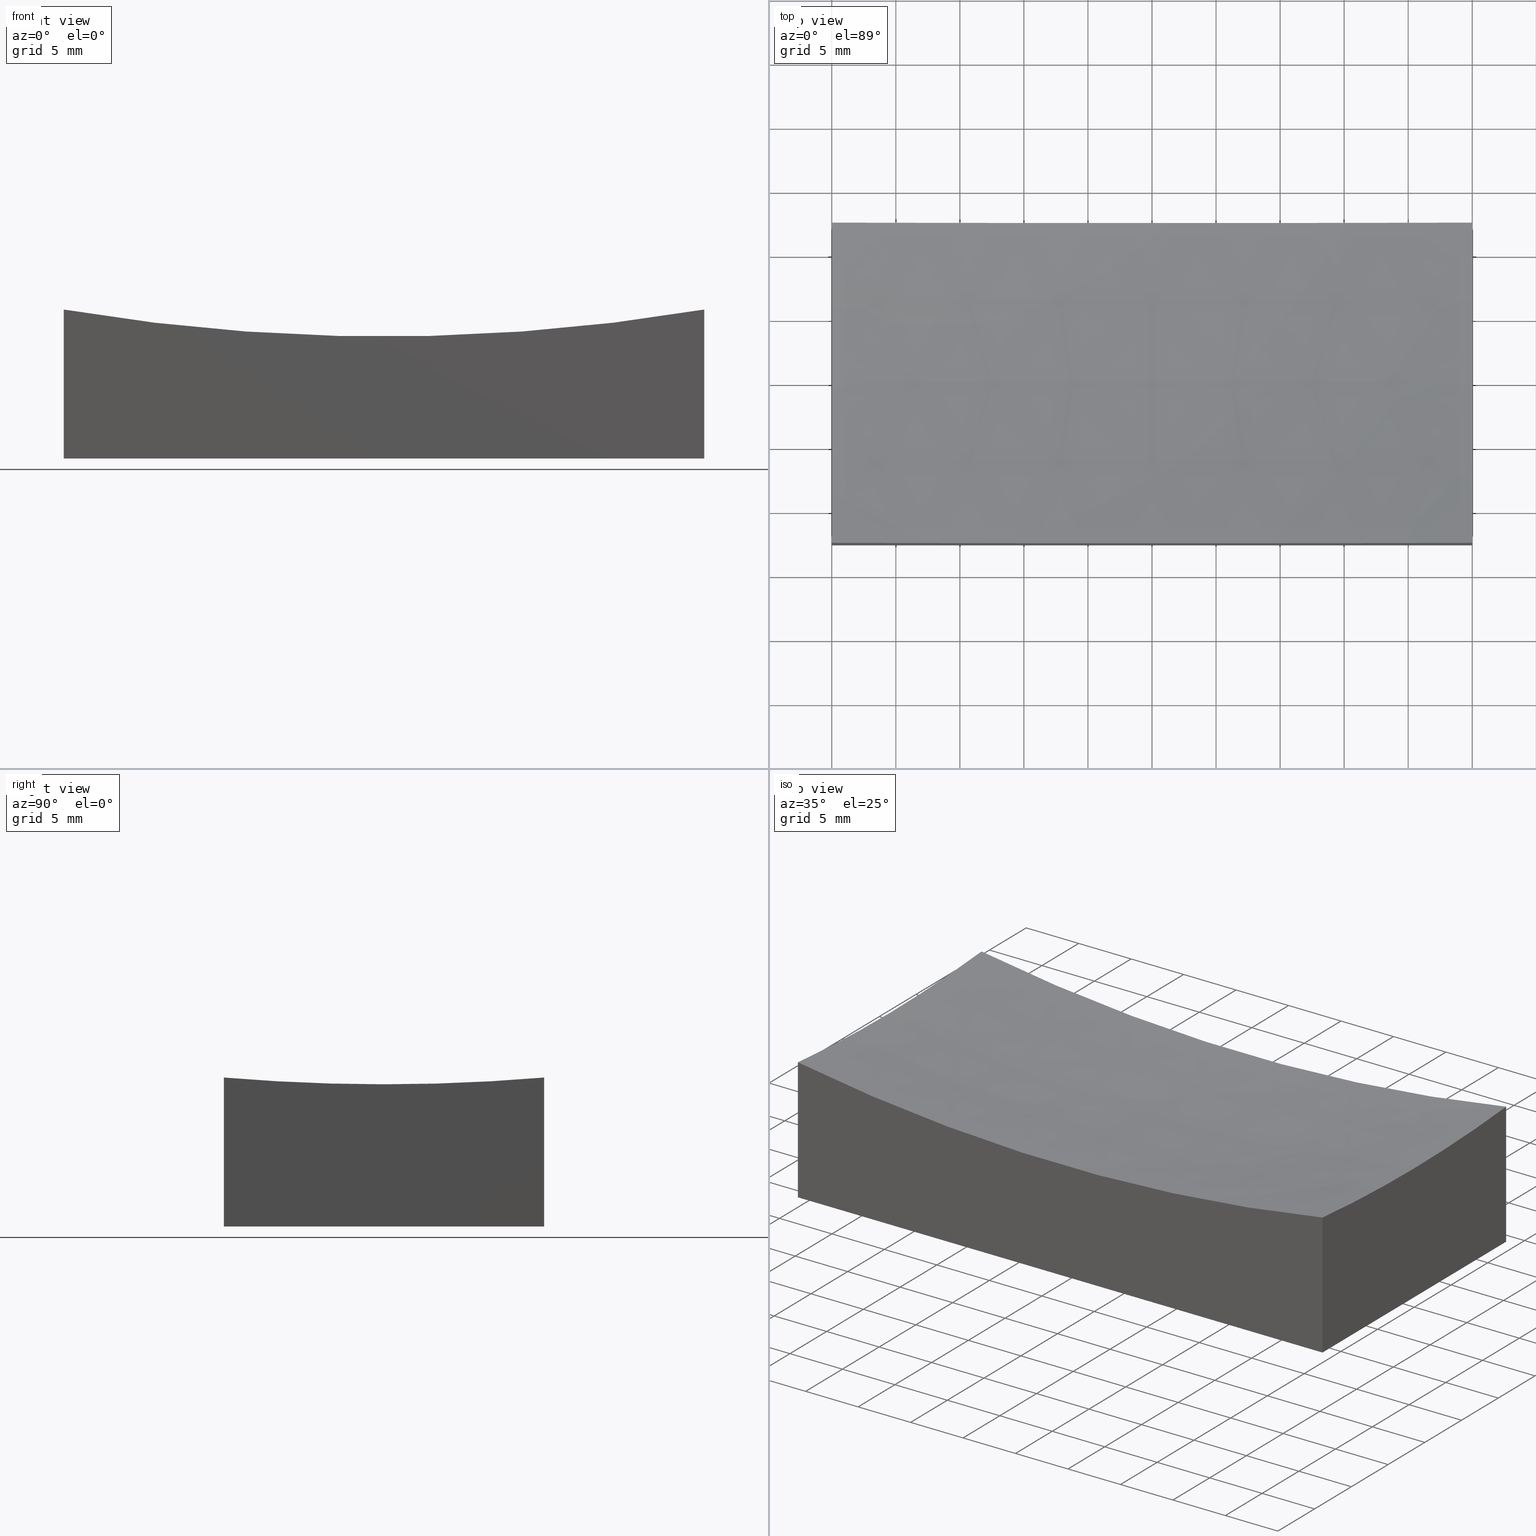
[diagram: canonical four-view strip — front | top / right | iso, engineering-drawing reading convention]
A machine part, canonical four-view strip (front | top / right | iso — engineering-drawing reading convention). The complete STEP part file that produces these views, byte-faithful:
ISO-10303-21;
HEADER;
FILE_DESCRIPTION (( 'STEP AP214' ),
    '1' );
FILE_NAME ('GM13-50x25-075.STEP',
    '2024-08-13T03:12:11',
    ( 'Windows User' ),
    ( 'P R C' ),
    'SwSTEP 2.0',
    'SolidWorks 2022',
    '' );
FILE_SCHEMA (( 'AUTOMOTIVE_DESIGN' ));
ENDSEC;

DATA;
#1 = MECHANICAL_DESIGN_GEOMETRIC_PRESENTATION_REPRESENTATION (  '', ( #171 ), #179 ) ;
#2 = EDGE_CURVE ( 'NONE', #228, #4, #135, .T. ) ;
#3 = UNCERTAINTY_MEASURE_WITH_UNIT (LENGTH_MEASURE( 1.000000000000000082E-05 ), #139, 'distance_accuracy_value', 'NONE');
#4 = VERTEX_POINT ( 'NONE', #192 ) ;
#5 = DIRECTION ( 'NONE',  ( 1.000000000000000000, -2.775557561562891351E-16, -0.000000000000000000 ) ) ;
#6 = ORIENTED_EDGE ( 'NONE', *, *, #18, .F. ) ;
#7 = DIRECTION ( 'NONE',  ( 1.387778780781445676E-16, -1.000000000000000000, 0.000000000000000000 ) ) ;
#8 = DIRECTION ( 'NONE',  ( -1.000000000000000000, 2.775557561562891351E-16, 0.000000000000000000 ) ) ;
#9 = ORIENTED_EDGE ( 'NONE', *, *, #213, .T. ) ;
#10 = ADVANCED_FACE ( 'NONE', ( #49 ), #248, .F. ) ;
#11 = DIRECTION ( 'NONE',  ( 1.000000000000000000, 0.000000000000000000, 0.000000000000000000 ) ) ;
#12 = CARTESIAN_POINT ( 'NONE',  ( -25.00000000000000000, 12.50000000000000000, 15.00000000000000000 ) ) ;
#13 = AXIS2_PLACEMENT_3D ( 'NONE', #52, #71, #64 ) ;
#14 = CARTESIAN_POINT ( 'NONE',  ( 0.000000000000000000, 0.000000000000000000, 159.0000000000000000 ) ) ;
#15 = AXIS2_PLACEMENT_3D ( 'NONE', #108, #209, #128 ) ;
#16 = SURFACE_STYLE_FILL_AREA ( #136 ) ;
#17 = COLOUR_RGB ( '',1.000000000000000000, 1.000000000000000000, 1.000000000000000000 ) ;
#18 = EDGE_CURVE ( 'NONE', #4, #25, #227, .T. ) ;
#19 = AXIS2_PLACEMENT_3D ( 'NONE', #30, #75, #43 ) ;
#20 = CIRCLE ( 'NONE', #196, 147.9019945774903704 ) ;
#21 = CARTESIAN_POINT ( 'NONE',  ( 0.000000000000000000, 0.000000000000000000, 0.000000000000000000 ) ) ;
#22 = AXIS2_PLACEMENT_3D ( 'NONE', #100, #251, #98 ) ;
#23 =( NAMED_UNIT ( * ) SI_UNIT ( $, .STERADIAN. ) SOLID_ANGLE_UNIT ( ) );
#24 = VECTOR ( 'NONE', #233, 1000.000000000000000 ) ;
#25 = VERTEX_POINT ( 'NONE', #206 ) ;
#26 = CARTESIAN_POINT ( 'NONE',  ( 24.99999999999999645, -12.50000000000000000, 15.00000000000000000 ) ) ;
#27 = VERTEX_POINT ( 'NONE', #95 ) ;
#28 =( GEOMETRIC_REPRESENTATION_CONTEXT ( 3 ) GLOBAL_UNCERTAINTY_ASSIGNED_CONTEXT ( ( #236 ) ) GLOBAL_UNIT_ASSIGNED_CONTEXT ( ( #142, #164, #23 ) ) REPRESENTATION_CONTEXT ( 'NONE', 'WORKASPACE' ) );
#29 = CARTESIAN_POINT ( 'NONE',  ( 24.99999999999999645, -12.50000000000000000, 11.62717346810507379 ) ) ;
#30 = CARTESIAN_POINT ( 'NONE',  ( 0.000000000000000000, 0.000000000000000000, 159.0000000000000000 ) ) ;
#31 = VERTEX_POINT ( 'NONE', #29 ) ;
#32 = DIRECTION ( 'NONE',  ( 0.000000000000000000, 0.000000000000000000, -1.000000000000000000 ) ) ;
#33 = DIRECTION ( 'NONE',  ( -0.000000000000000000, -0.000000000000000000, -1.000000000000000000 ) ) ;
#34 = PRESENTATION_STYLE_ASSIGNMENT (( #154 ) ) ;
#35 = AXIS2_PLACEMENT_3D ( 'NONE', #21, #237, #85 ) ;
#36 = ADVANCED_FACE ( 'NONE', ( #191 ), #111, .F. ) ;
#37 = SURFACE_SIDE_STYLE ('',( #123 ) ) ;
#38 = CIRCLE ( 'NONE', #219, 147.9019945774903704 ) ;
#39 = PRODUCT ( 'GM13-50x25-075', 'GM13-50x25-075', '', ( #203 ) ) ;
#40 = EDGE_CURVE ( 'NONE', #31, #122, #44, .T. ) ;
#41 = ORIENTED_EDGE ( 'NONE', *, *, #246, .F. ) ;
#42 = ORIENTED_EDGE ( 'NONE', *, *, #2, .F. ) ;
#43 = DIRECTION ( 'NONE',  ( 0.000000000000000000, 0.000000000000000000, 1.000000000000000000 ) ) ;
#44 = CIRCLE ( 'NONE', #104, 147.9019945774903704 ) ;
#45 = ORIENTED_EDGE ( 'NONE', *, *, #97, .T. ) ;
#46 = DIRECTION ( 'NONE',  ( 2.775557561562891351E-16, 1.000000000000000000, -0.000000000000000000 ) ) ;
#47 = APPLICATION_CONTEXT ( 'automotive_design' ) ;
#48 = CARTESIAN_POINT ( 'NONE',  ( 25.00000000000000000, -6.938893903907228378E-15, 159.0000000000000000 ) ) ;
#49 = FACE_OUTER_BOUND ( 'NONE', #149, .T. ) ;
#50 = DIRECTION ( 'NONE',  ( 0.000000000000000000, -0.000000000000000000, 1.000000000000000000 ) ) ;
#51 = ORIENTED_EDGE ( 'NONE', *, *, #61, .T. ) ;
#52 = CARTESIAN_POINT ( 'NONE',  ( 0.000000000000000000, 0.000000000000000000, 159.0000000000000000 ) ) ;
#53 = DIRECTION ( 'NONE',  ( 0.000000000000000000, -0.000000000000000000, -1.000000000000000000 ) ) ;
#54 =( LENGTH_UNIT ( ) NAMED_UNIT ( * ) SI_UNIT ( .MILLI., .METRE. ) );
#55 = DIRECTION ( 'NONE',  ( 1.000000000000000000, 1.224646799147353207E-16, 0.000000000000000000 ) ) ;
#56 = DIRECTION ( 'NONE',  ( 1.000000000000000000, 0.000000000000000000, 0.000000000000000000 ) ) ;
#57 = VECTOR ( 'NONE', #46, 1000.000000000000000 ) ;
#58 = AXIS2_PLACEMENT_3D ( 'NONE', #12, #231, #96 ) ;
#59 = AXIS2_PLACEMENT_3D ( 'NONE', #117, #157, #119 ) ;
#60 =( GEOMETRIC_REPRESENTATION_CONTEXT ( 3 ) GLOBAL_UNCERTAINTY_ASSIGNED_CONTEXT ( ( #3 ) ) GLOBAL_UNIT_ASSIGNED_CONTEXT ( ( #139, #74, #125 ) ) REPRESENTATION_CONTEXT ( 'NONE', 'WORKASPACE' ) );
#61 = EDGE_CURVE ( 'NONE', #122, #223, #20, .T. ) ;
#62 = VECTOR ( 'NONE', #77, 1000.000000000000000 ) ;
#63 = ORIENTED_EDGE ( 'NONE', *, *, #86, .T. ) ;
#64 = DIRECTION ( 'NONE',  ( 1.000000000000000000, 0.000000000000000000, 0.000000000000000000 ) ) ;
#65 = APPLICATION_PROTOCOL_DEFINITION ( 'draft international standard', 'automotive_design', 1998, #47 ) ;
#66 = EDGE_LOOP ( 'NONE', ( #132, #9, #183, #42 ) ) ;
#67 = FACE_OUTER_BOUND ( 'NONE', #207, .T. ) ;
#68 = EDGE_CURVE ( 'NONE', #226, #31, #127, .T. ) ;
#69 = VECTOR ( 'NONE', #7, 1000.000000000000000 ) ;
#70 = EDGE_LOOP ( 'NONE', ( #205, #144, #114, #51, #162 ) ) ;
#71 = DIRECTION ( 'NONE',  ( 0.000000000000000000, -1.000000000000000000, -0.000000000000000000 ) ) ;
#72 = CARTESIAN_POINT ( 'NONE',  ( 25.00000000000000355, 12.50000000000000000, 0.000000000000000000 ) ) ;
#73 = EDGE_LOOP ( 'NONE', ( #189, #129, #173, #165, #45 ) ) ;
#74 =( NAMED_UNIT ( * ) PLANE_ANGLE_UNIT ( ) SI_UNIT ( $, .RADIAN. ) );
#75 = DIRECTION ( 'NONE',  ( 0.000000000000000000, 1.000000000000000000, -0.000000000000000000 ) ) ;
#76 = ORIENTED_EDGE ( 'NONE', *, *, #246, .T. ) ;
#77 = DIRECTION ( 'NONE',  ( -1.000000000000000000, -0.000000000000000000, -0.000000000000000000 ) ) ;
#78 = EDGE_CURVE ( 'NONE', #31, #186, #168, .T. ) ;
#79 = SURFACE_SIDE_STYLE ('',( #16 ) ) ;
#80 = DIRECTION ( 'NONE',  ( 0.000000000000000000, -1.000000000000000000, 0.000000000000000000 ) ) ;
#81 = DIRECTION ( 'NONE',  ( -1.407464569439270828E-16, 1.000000000000000000, 0.000000000000000000 ) ) ;
#82 = COLOUR_RGB ( '',1.000000000000000000, 1.000000000000000000, 1.000000000000000000 ) ;
#83 = UNCERTAINTY_MEASURE_WITH_UNIT (LENGTH_MEASURE( 1.000000000000000082E-05 ), #54, 'distance_accuracy_value', 'NONE');
#84 = FILL_AREA_STYLE_COLOUR ( '', #17 ) ;
#85 = DIRECTION ( 'NONE',  ( 1.000000000000000000, 0.000000000000000000, 0.000000000000000000 ) ) ;
#86 = EDGE_CURVE ( 'NONE', #226, #25, #222, .T. ) ;
#87 = ORIENTED_EDGE ( 'NONE', *, *, #61, .F. ) ;
#88 = ORIENTED_EDGE ( 'NONE', *, *, #133, .T. ) ;
#89 = DIRECTION ( 'NONE',  ( 1.000000000000000000, -2.775557561562891351E-16, -0.000000000000000000 ) ) ;
#90 = VERTEX_POINT ( 'NONE', #92 ) ;
#91 = CARTESIAN_POINT ( 'NONE',  ( 0.000000000000000000, 12.50000000000000000, 159.0000000000000000 ) ) ;
#92 = CARTESIAN_POINT ( 'NONE',  ( -25.00000000000000000, -3.061616997868383043E-15, 11.09800542250961897 ) ) ;
#93 = EDGE_LOOP ( 'NONE', ( #6, #221, #152, #41 ) ) ;
#94 = CIRCLE ( 'NONE', #19, 149.9999999999999432 ) ;
#95 = CARTESIAN_POINT ( 'NONE',  ( 25.00000000000000355, 12.50000000000000000, 0.000000000000000000 ) ) ;
#96 = DIRECTION ( 'NONE',  ( -1.387778780781445676E-16, 1.000000000000000000, 0.000000000000000000 ) ) ;
#97 = EDGE_CURVE ( 'NONE', #122, #126, #94, .T. ) ;
#98 = DIRECTION ( 'NONE',  ( 1.000000000000000000, 0.000000000000000000, 0.000000000000000000 ) ) ;
#99 = VECTOR ( 'NONE', #33, 1000.000000000000000 ) ;
#100 = CARTESIAN_POINT ( 'NONE',  ( 0.000000000000000000, 0.000000000000000000, 0.000000000000000000 ) ) ;
#101 = LINE ( 'NONE', #156, #160 ) ;
#102 = CARTESIAN_POINT ( 'NONE',  ( -25.00000000000000000, 12.50000000000000000, 15.00000000000000000 ) ) ;
#103 = AXIS2_PLACEMENT_3D ( 'NONE', #91, #208, #32 ) ;
#104 = AXIS2_PLACEMENT_3D ( 'NONE', #225, #5, #241 ) ;
#105 = SHAPE_DEFINITION_REPRESENTATION ( #242, #153 ) ;
#106 = APPLICATION_PROTOCOL_DEFINITION ( 'draft international standard', 'automotive_design', 1998, #216 ) ;
#107 = ORIENTED_EDGE ( 'NONE', *, *, #213, .F. ) ;
#108 = CARTESIAN_POINT ( 'NONE',  ( 0.000000000000000000, -12.49999999999999645, 159.0000000000000000 ) ) ;
#109 = PRODUCT_DEFINITION ( 'δ֪', '', #147, #141 ) ;
#110 = ORIENTED_EDGE ( 'NONE', *, *, #2, .T. ) ;
#111 = PLANE ( 'NONE',  #235 ) ;
#112 = ORIENTED_EDGE ( 'NONE', *, *, #181, .F. ) ;
#113 = FACE_OUTER_BOUND ( 'NONE', #70, .T. ) ;
#114 = ORIENTED_EDGE ( 'NONE', *, *, #97, .F. ) ;
#115 = ADVANCED_FACE ( 'NONE', ( #67 ), #243, .F. ) ;
#116 = PRESENTATION_LAYER_ASSIGNMENT (  '', '', ( #171 ) ) ;
#117 = CARTESIAN_POINT ( 'NONE',  ( -25.00000000000000000, -3.469446951953614189E-15, 159.0000000000000000 ) ) ;
#118 = PLANE ( 'NONE',  #159 ) ;
#119 = DIRECTION ( 'NONE',  ( -1.407464569439270828E-16, 1.000000000000000000, 0.000000000000000000 ) ) ;
#120 = LINE ( 'NONE', #138, #62 ) ;
#121 = ADVANCED_FACE ( 'NONE', ( #145 ), #184, .F. ) ;
#122 = VERTEX_POINT ( 'NONE', #130 ) ;
#123 = SURFACE_STYLE_FILL_AREA ( #199 ) ;
#124 = CIRCLE ( 'NONE', #103, 149.4782592887674184 ) ;
#125 =( NAMED_UNIT ( * ) SI_UNIT ( $, .STERADIAN. ) SOLID_ANGLE_UNIT ( ) );
#126 = VERTEX_POINT ( 'NONE', #244 ) ;
#127 = CIRCLE ( 'NONE', #15, 149.4782592887674184 ) ;
#128 = DIRECTION ( 'NONE',  ( 4.440892098500626162E-15, 0.000000000000000000, 1.000000000000000000 ) ) ;
#129 = ORIENTED_EDGE ( 'NONE', *, *, #202, .T. ) ;
#130 = CARTESIAN_POINT ( 'NONE',  ( 25.00000000000000000, -3.851859888774471706E-31, 11.09800542250961897 ) ) ;
#131 = DIRECTION ( 'NONE',  ( 0.000000000000000000, 1.000000000000000000, 0.000000000000000000 ) ) ;
#132 = ORIENTED_EDGE ( 'NONE', *, *, #140, .F. ) ;
#133 = EDGE_CURVE ( 'NONE', #186, #27, #224, .T. ) ;
#134 = CARTESIAN_POINT ( 'NONE',  ( 25.00000000000000355, 12.50000000000000000, 15.00000000000000000 ) ) ;
#135 = LINE ( 'NONE', #212, #99 ) ;
#136 = FILL_AREA_STYLE ('',( #195 ) ) ;
#137 = LINE ( 'NONE', #229, #24 ) ;
#138 = CARTESIAN_POINT ( 'NONE',  ( -25.00000000000000000, 12.50000000000000000, 0.000000000000000000 ) ) ;
#139 =( LENGTH_UNIT ( ) NAMED_UNIT ( * ) SI_UNIT ( .MILLI., .METRE. ) );
#140 = EDGE_CURVE ( 'NONE', #223, #228, #124, .T. ) ;
#141 = PRODUCT_DEFINITION_CONTEXT ( 'detailed design', #216, 'design' ) ;
#142 =( LENGTH_UNIT ( ) NAMED_UNIT ( * ) SI_UNIT ( .MILLI., .METRE. ) );
#143 = DIRECTION ( 'NONE',  ( -2.814929138878541656E-16, -1.000000000000000000, 0.000000000000000000 ) ) ;
#144 = ORIENTED_EDGE ( 'NONE', *, *, #230, .T. ) ;
#145 = FACE_OUTER_BOUND ( 'NONE', #73, .T. ) ;
#146 = FACE_OUTER_BOUND ( 'NONE', #66, .T. ) ;
#147 = PRODUCT_DEFINITION_FORMATION_WITH_SPECIFIED_SOURCE ( '�κ�', '', #39, .NOT_KNOWN. ) ;
#148 = CARTESIAN_POINT ( 'NONE',  ( -24.99999999999999645, -12.50000000000000000, 15.00000000000000000 ) ) ;
#149 = EDGE_LOOP ( 'NONE', ( #112, #110, #245, #204, #170 ) ) ;
#150 = CARTESIAN_POINT ( 'NONE',  ( 24.99999999999999645, -12.50000000000000000, 0.000000000000000000 ) ) ;
#151 = CARTESIAN_POINT ( 'NONE',  ( 0.000000000000000000, 0.000000000000000000, 159.0000000000000000 ) ) ;
#152 = ORIENTED_EDGE ( 'NONE', *, *, #133, .F. ) ;
#153 = ADVANCED_BREP_SHAPE_REPRESENTATION ( 'GM13-50x25-075', ( #190, #35 ), #60 ) ;
#154 = SURFACE_STYLE_USAGE ( .BOTH. , #79 ) ;
#155 = PRODUCT_RELATED_PRODUCT_CATEGORY ( 'part', '', ( #39 ) ) ;
#156 = CARTESIAN_POINT ( 'NONE',  ( -24.99999999999999645, -12.50000000000000000, 0.000000000000000000 ) ) ;
#157 = DIRECTION ( 'NONE',  ( -1.000000000000000000, -1.387778780781445676E-16, 0.000000000000000000 ) ) ;
#158 = ADVANCED_FACE ( 'NONE', ( #113 ), #187, .F. ) ;
#159 = AXIS2_PLACEMENT_3D ( 'NONE', #102, #80, #53 ) ;
#160 = VECTOR ( 'NONE', #56, 1000.000000000000000 ) ;
#161 = PRESENTATION_LAYER_ASSIGNMENT (  '', '', ( #185 ) ) ;
#162 = ORIENTED_EDGE ( 'NONE', *, *, #140, .T. ) ;
#163 = ADVANCED_FACE ( 'NONE', ( #146 ), #118, .F. ) ;
#164 =( NAMED_UNIT ( * ) PLANE_ANGLE_UNIT ( ) SI_UNIT ( $, .RADIAN. ) );
#165 = ORIENTED_EDGE ( 'NONE', *, *, #40, .T. ) ;
#166 = CARTESIAN_POINT ( 'NONE',  ( -24.99999999999999645, -12.50000000000000000, 15.00000000000000000 ) ) ;
#167 = ORIENTED_EDGE ( 'NONE', *, *, #40, .F. ) ;
#168 = LINE ( 'NONE', #26, #201 ) ;
#169 = DIRECTION ( 'NONE',  ( 0.000000000000000000, -1.000000000000000000, -0.000000000000000000 ) ) ;
#170 = ORIENTED_EDGE ( 'NONE', *, *, #202, .F. ) ;
#171 = STYLED_ITEM ( 'NONE', ( #34 ), #190 ) ;
#172 = DIRECTION ( 'NONE',  ( -0.000000000000000000, -0.000000000000000000, -1.000000000000000000 ) ) ;
#173 = ORIENTED_EDGE ( 'NONE', *, *, #68, .T. ) ;
#174 = DIRECTION ( 'NONE',  ( 1.224646799147353207E-16, -1.000000000000000000, -3.185993688710303800E-35 ) ) ;
#175 = CIRCLE ( 'NONE', #250, 149.9999999999999716 ) ;
#176 = CARTESIAN_POINT ( 'NONE',  ( -25.00000000000000000, -3.469446951953614189E-15, 159.0000000000000000 ) ) ;
#177 =( NAMED_UNIT ( * ) SI_UNIT ( $, .STERADIAN. ) SOLID_ANGLE_UNIT ( ) );
#178 = ADVANCED_FACE ( 'NONE', ( #215 ), #232, .F. ) ;
#179 =( GEOMETRIC_REPRESENTATION_CONTEXT ( 3 ) GLOBAL_UNCERTAINTY_ASSIGNED_CONTEXT ( ( #83 ) ) GLOBAL_UNIT_ASSIGNED_CONTEXT ( ( #54, #217, #177 ) ) REPRESENTATION_CONTEXT ( 'NONE', 'WORKASPACE' ) );
#180 = SURFACE_STYLE_USAGE ( .BOTH. , #37 ) ;
#181 = EDGE_CURVE ( 'NONE', #228, #90, #38, .T. ) ;
#182 = ORIENTED_EDGE ( 'NONE', *, *, #68, .F. ) ;
#183 = ORIENTED_EDGE ( 'NONE', *, *, #198, .T. ) ;
#184 = SPHERICAL_SURFACE ( 'NONE', #234, 149.9999999999999716 ) ;
#185 = STYLED_ITEM ( 'NONE', ( #239 ), #153 ) ;
#186 = VERTEX_POINT ( 'NONE', #150 ) ;
#187 = SPHERICAL_SURFACE ( 'NONE', #13, 149.9999999999999716 ) ;
#188 = DIRECTION ( 'NONE',  ( -0.000000000000000000, -0.000000000000000000, -1.000000000000000000 ) ) ;
#189 = ORIENTED_EDGE ( 'NONE', *, *, #230, .F. ) ;
#190 = MANIFOLD_SOLID_BREP ( '�г�-��ת1', #200 ) ;
#191 = FACE_OUTER_BOUND ( 'NONE', #220, .T. ) ;
#192 = CARTESIAN_POINT ( 'NONE',  ( -25.00000000000000000, 12.50000000000000000, 0.000000000000000000 ) ) ;
#193 = VECTOR ( 'NONE', #172, 1000.000000000000000 ) ;
#194 = CARTESIAN_POINT ( 'NONE',  ( 25.00000000000000355, 12.50000000000000000, 11.62717346810510044 ) ) ;
#195 = FILL_AREA_STYLE_COLOUR ( '', #82 ) ;
#196 = AXIS2_PLACEMENT_3D ( 'NONE', #48, #89, #143 ) ;
#197 = CARTESIAN_POINT ( 'NONE',  ( -25.00000000000000000, 12.50000000000000000, 11.62717346810510044 ) ) ;
#198 = EDGE_CURVE ( 'NONE', #27, #4, #120, .T. ) ;
#199 = FILL_AREA_STYLE ('',( #84 ) ) ;
#200 = CLOSED_SHELL ( 'NONE', ( #158, #10, #36, #115, #163, #178, #121 ) ) ;
#201 = VECTOR ( 'NONE', #188, 1000.000000000000000 ) ;
#202 = EDGE_CURVE ( 'NONE', #90, #226, #214, .T. ) ;
#203 = PRODUCT_CONTEXT ( 'NONE', #47, 'mechanical' ) ;
#204 = ORIENTED_EDGE ( 'NONE', *, *, #86, .F. ) ;
#205 = ORIENTED_EDGE ( 'NONE', *, *, #181, .T. ) ;
#206 = CARTESIAN_POINT ( 'NONE',  ( -24.99999999999999645, -12.50000000000000000, 0.000000000000000000 ) ) ;
#207 = EDGE_LOOP ( 'NONE', ( #167, #240, #88, #107, #87 ) ) ;
#208 = DIRECTION ( 'NONE',  ( -0.000000000000000000, 1.000000000000000000, -0.000000000000000000 ) ) ;
#209 = DIRECTION ( 'NONE',  ( -0.000000000000000000, -1.000000000000000000, -0.000000000000000000 ) ) ;
#210 = ORIENTED_EDGE ( 'NONE', *, *, #78, .F. ) ;
#211 = DIRECTION ( 'NONE',  ( -2.775557561562891351E-16, -1.000000000000000000, 0.000000000000000000 ) ) ;
#212 = CARTESIAN_POINT ( 'NONE',  ( -25.00000000000000000, 12.50000000000000000, 15.00000000000000000 ) ) ;
#213 = EDGE_CURVE ( 'NONE', #223, #27, #137, .T. ) ;
#214 = CIRCLE ( 'NONE', #59, 147.9019945774903704 ) ;
#215 = FACE_OUTER_BOUND ( 'NONE', #93, .T. ) ;
#216 = APPLICATION_CONTEXT ( 'automotive_design' ) ;
#217 =( NAMED_UNIT ( * ) PLANE_ANGLE_UNIT ( ) SI_UNIT ( $, .RADIAN. ) );
#218 = MECHANICAL_DESIGN_GEOMETRIC_PRESENTATION_REPRESENTATION (  '', ( #185 ), #28 ) ;
#219 = AXIS2_PLACEMENT_3D ( 'NONE', #176, #249, #81 ) ;
#220 = EDGE_LOOP ( 'NONE', ( #182, #63, #76, #210 ) ) ;
#221 = ORIENTED_EDGE ( 'NONE', *, *, #198, .F. ) ;
#222 = LINE ( 'NONE', #166, #193 ) ;
#223 = VERTEX_POINT ( 'NONE', #194 ) ;
#224 = LINE ( 'NONE', #72, #57 ) ;
#225 = CARTESIAN_POINT ( 'NONE',  ( 25.00000000000000000, -6.938893903907228378E-15, 159.0000000000000000 ) ) ;
#226 = VERTEX_POINT ( 'NONE', #252 ) ;
#227 = LINE ( 'NONE', #247, #69 ) ;
#228 = VERTEX_POINT ( 'NONE', #197 ) ;
#229 = CARTESIAN_POINT ( 'NONE',  ( 25.00000000000000355, 12.50000000000000000, 15.00000000000000000 ) ) ;
#230 = EDGE_CURVE ( 'NONE', #90, #126, #175, .T. ) ;
#231 = DIRECTION ( 'NONE',  ( 1.000000000000000000, 1.387778780781445676E-16, -0.000000000000000000 ) ) ;
#232 = PLANE ( 'NONE',  #22 ) ;
#233 = DIRECTION ( 'NONE',  ( -0.000000000000000000, -0.000000000000000000, -1.000000000000000000 ) ) ;
#234 = AXIS2_PLACEMENT_3D ( 'NONE', #151, #169, #11 ) ;
#235 = AXIS2_PLACEMENT_3D ( 'NONE', #148, #131, #50 ) ;
#236 = UNCERTAINTY_MEASURE_WITH_UNIT (LENGTH_MEASURE( 1.000000000000000082E-05 ), #142, 'distance_accuracy_value', 'NONE');
#237 = DIRECTION ( 'NONE',  ( 0.000000000000000000, 0.000000000000000000, 1.000000000000000000 ) ) ;
#238 = AXIS2_PLACEMENT_3D ( 'NONE', #134, #8, #211 ) ;
#239 = PRESENTATION_STYLE_ASSIGNMENT (( #180 ) ) ;
#240 = ORIENTED_EDGE ( 'NONE', *, *, #78, .T. ) ;
#241 = DIRECTION ( 'NONE',  ( -2.814929138878541656E-16, -1.000000000000000000, 0.000000000000000000 ) ) ;
#242 = PRODUCT_DEFINITION_SHAPE ( 'NONE', 'NONE',  #109 ) ;
#243 = PLANE ( 'NONE',  #238 ) ;
#244 = CARTESIAN_POINT ( 'NONE',  ( 9.145827574474074517E-15, 0.000000000000000000, 9.000000000000035527 ) ) ;
#245 = ORIENTED_EDGE ( 'NONE', *, *, #18, .T. ) ;
#246 = EDGE_CURVE ( 'NONE', #25, #186, #101, .T. ) ;
#247 = CARTESIAN_POINT ( 'NONE',  ( -25.00000000000000000, 12.50000000000000000, 0.000000000000000000 ) ) ;
#248 = PLANE ( 'NONE',  #58 ) ;
#249 = DIRECTION ( 'NONE',  ( -1.000000000000000000, -1.387778780781445676E-16, 0.000000000000000000 ) ) ;
#250 = AXIS2_PLACEMENT_3D ( 'NONE', #14, #174, #55 ) ;
#251 = DIRECTION ( 'NONE',  ( -0.000000000000000000, 0.000000000000000000, 1.000000000000000000 ) ) ;
#252 = CARTESIAN_POINT ( 'NONE',  ( -24.99999999999998934, -12.49999999999999645, 11.62717346810510044 ) ) ;
ENDSEC;
END-ISO-10303-21;
